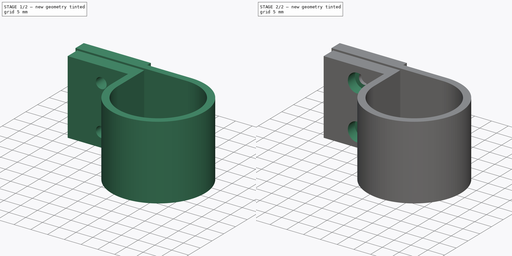
[diagram: build sequence overview — one tinted view per stage of 2, left to right]
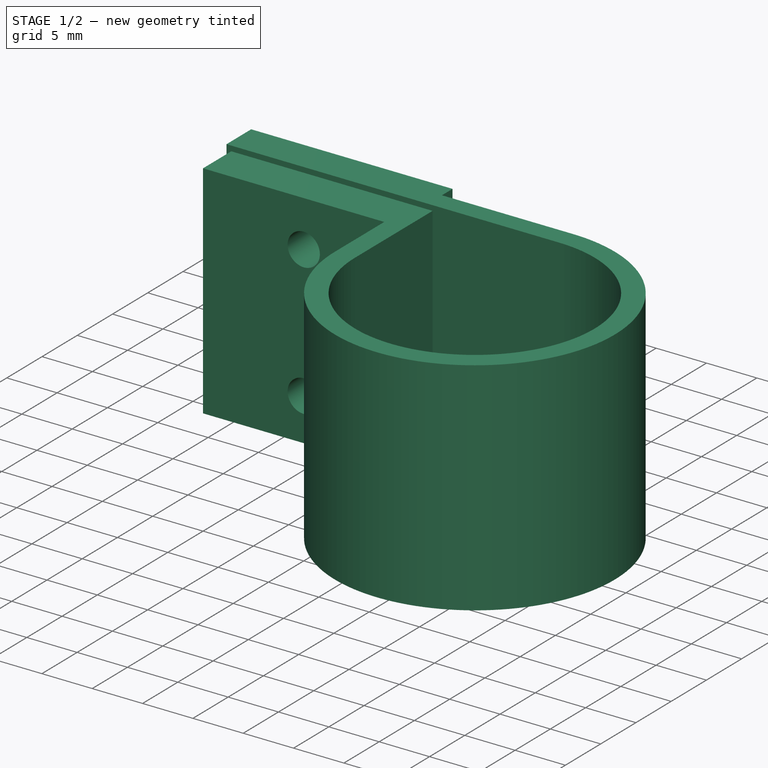
[diagram: stage 1 of 2 — iso view after this stage's code; geometry added in this stage tinted green]
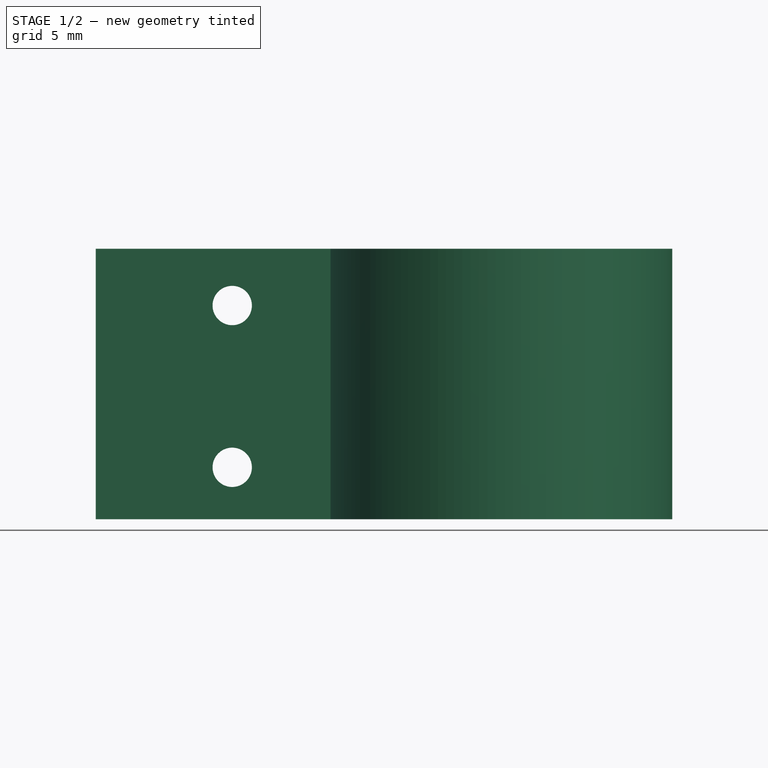
[diagram: stage 1 of 2 — front view after this stage's code; geometry added in this stage tinted green]
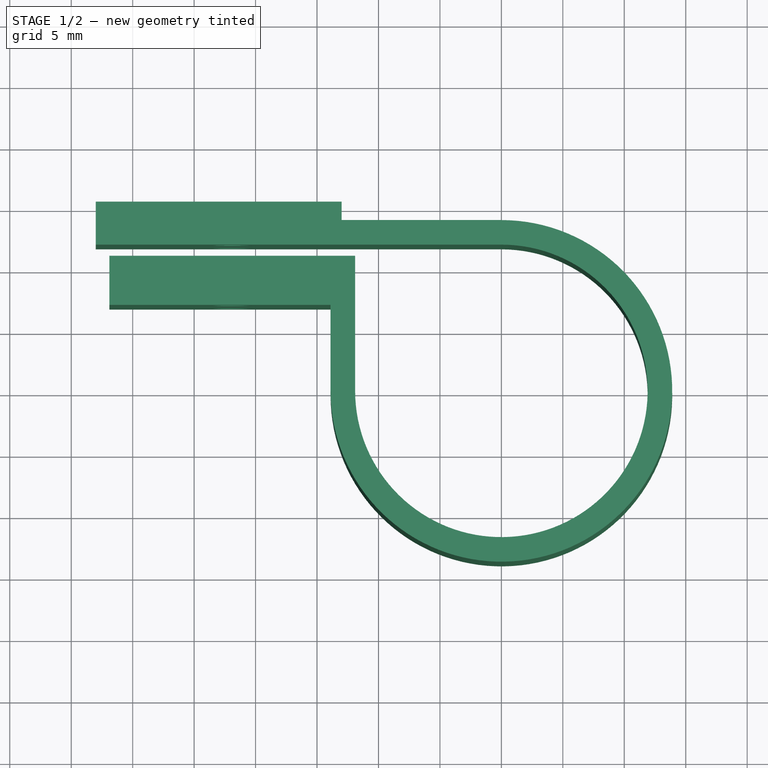
[diagram: stage 1 of 2 — top view after this stage's code; geometry added in this stage tinted green]
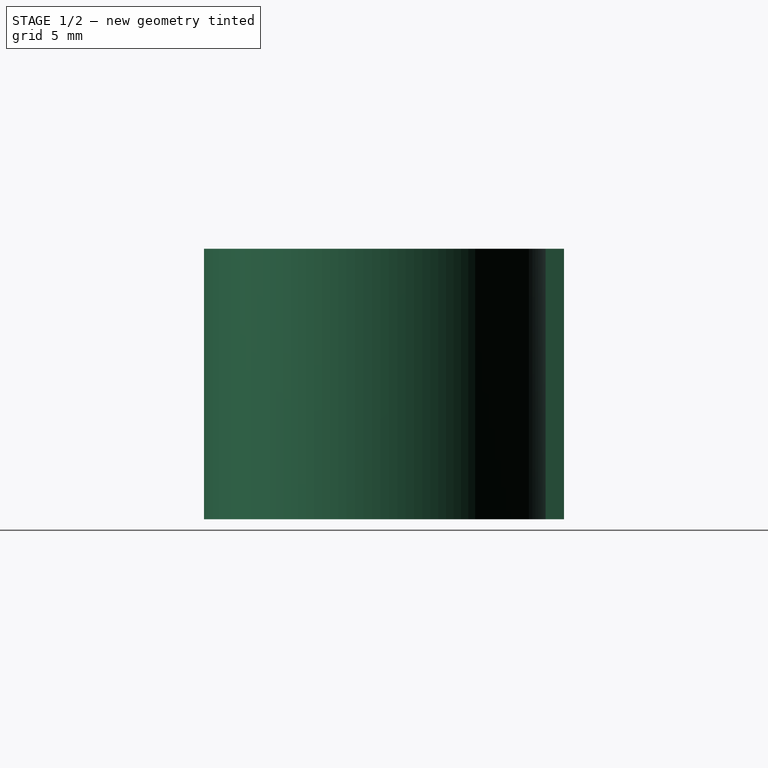
[diagram: stage 1 of 2 — right view after this stage's code; geometry added in this stage tinted green]
FCSTD DOCUMENT  (FreeCAD 0.18.4R)
Label: support_pump
License: All rights reserved
LicenseURL: http://en.wikipedia.org/wiki/All_rights_reserved
objects: Sketcher::SketchObject×3, PartDesign::Pocket×2, PartDesign::Pad×1, PartDesign::Body×1
note: 10 computed .brp shape members not serialized (recipe doc carries the construction recipe); baked Part::Feature solids carry a one-line shape summary decoded from their .brp

FEATURE [Sketcher::SketchObject] Sketch
  MapMode = 5
  Support = -> [XY_Plane]
  sketch-geometry (13):
    g0: ArcOfCircle CenterX=0 CenterY=0 CenterZ=0 NormalX=0 NormalY=0 NormalZ=1 AngleXU=0 Radius=13.9 StartAngle=3.14159 EndAngle=7.85398
    g1: ArcOfCircle CenterX=0 CenterY=0 CenterZ=0 NormalX=0 NormalY=0 NormalZ=1 AngleXU=0 Radius=11.9 StartAngle=3.14159 EndAngle=7.85398
    g2: LineSegment StartX=3.6e-15 StartY=11.9 StartZ=0 EndX=-33 EndY=11.9 EndZ=0
    g3: LineSegment StartX=-33 StartY=11.9 StartZ=0 EndX=-33 EndY=15.4 EndZ=0
    g4: LineSegment StartX=-13.9 StartY=1.7e-15 StartZ=0 EndX=-13.9 EndY=7 EndZ=0
    g5: LineSegment StartX=-11.9 StartY=1.5e-15 StartZ=0 EndX=-11.9 EndY=11 EndZ=0
    g6: LineSegment StartX=-11.9 StartY=11 StartZ=0 EndX=-31.9 EndY=11 EndZ=0
    g7: LineSegment StartX=-31.9 StartY=11 StartZ=0 EndX=-31.9 EndY=7 EndZ=0
    g8: LineSegment StartX=-31.9 StartY=7 StartZ=0 EndX=-13.9 EndY=7 EndZ=0
    g9: LineSegment StartX=4.3e-15 StartY=16.5 StartZ=0 EndX=4.3e-15 EndY=13.9 EndZ=0
    g10: LineSegment StartX=4.3e-15 StartY=13.9 StartZ=0 EndX=-13 EndY=13.9 EndZ=0
    g11: LineSegment StartX=-13 StartY=13.9 StartZ=0 EndX=-13 EndY=15.4 EndZ=0
    g12: LineSegment StartX=-13 StartY=15.4 StartZ=0 EndX=-33 EndY=15.4 EndZ=0
  constraints (38):
    c: Coincident(g0,g-1)
    c: PointOnObject(g0,g-1)
    c: Radius(g0) = 13.9
    c: Coincident(g1,g0)
    c: PointOnObject(g1,g-2)
    c: PointOnObject(g1,g-1)
    c: Radius(g1) = 11.9
    c: Coincident(g2,g1)
    c: Horizontal(g2)
    c: Coincident(g3,g2)
    c: Coincident(g4,g0)
    c: Vertical(g4)
    c: Coincident(g5,g1)
    c: Vertical(g5)
    c: Coincident(g6,g5)
    c: Horizontal(g6)
    c: Coincident(g7,g6)
    c: Vertical(g7)
    c: Coincident(g8,g7)
    c: Coincident(g8,g4)
    c: Horizontal(g8)
    c: DistanceY(g5,g5) = 11
    c: PointOnObject(g9,g-2)
    c: Coincident(g9,g0)
    c: Vertical(g9)
    c: DistanceY(g3,g3) = 3.5
    c: DistanceX(g6,g6) = 20
    c: Coincident(g10,g0)
    c: Horizontal(g10)
    c: Coincident(g11,g10)
    c: Coincident(g12,g11)
    c: Coincident(g12,g3)
    c: Horizontal(g12)
    c: DistanceX(g12,g12) = 20
    c: DistanceX(g2,g2) = 33
    c: Perpendicular(g2,g3)
    c: DistanceY(g7,g7) = 4
    c: Perpendicular(g10,g11)
FEATURE [PartDesign::Pad] Pad
  Length = 22
  Length2 = 100
  Profile = -> Sketch
  Type = 0
FEATURE [Sketcher::SketchObject] Sketch001
  ExternalGeometry = -> [Pad]
  MapMode = 5
  Placement = pos=(0,7,0) rot=(1,0,0;1.5708rad)
  Support = -> [Pad]
  sketch-geometry (2):
    g0: Circle CenterX=-21.9 CenterY=17.3851 CenterZ=0 NormalX=0 NormalY=0 NormalZ=1 AngleXU=0 Radius=1.6
    g1: Circle CenterX=-21.9 CenterY=4.22157 CenterZ=0 NormalX=0 NormalY=0 NormalZ=1 AngleXU=0 Radius=1.6
  constraints (4):
    c: Vertical(g0,g1)
    c: Radius(g0) = 1.6
    c: Radius(g1) = 1.6
    c: Distance(g0,g-3) = 10
FEATURE [PartDesign::Pocket] Pocket
  BaseFeature = -> Pad
  Length = 9.5
  Length2 = 100
  Profile = -> Sketch001
  Type = 0
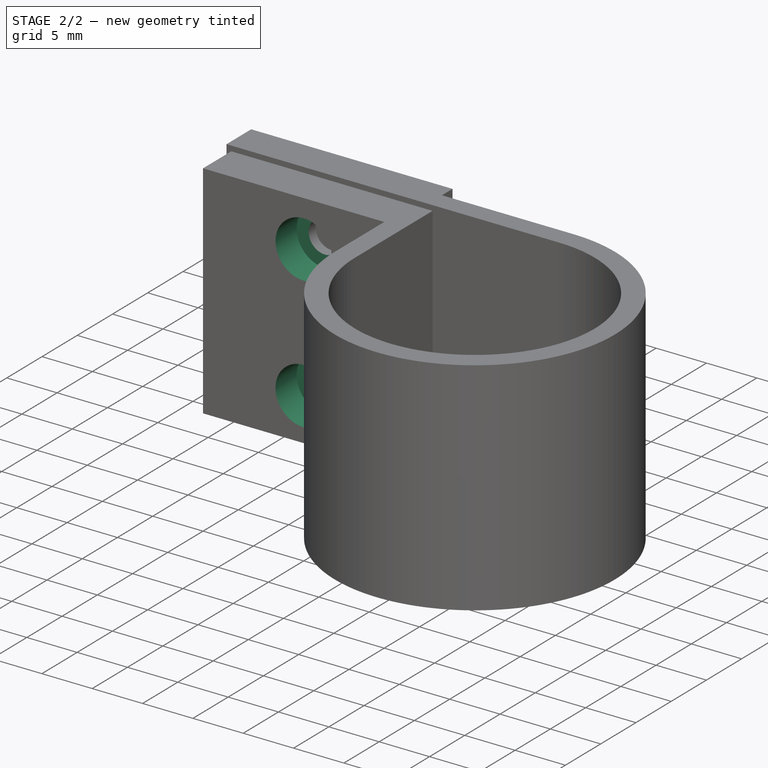
[diagram: stage 2 of 2 — iso view after this stage's code; geometry added in this stage tinted green]
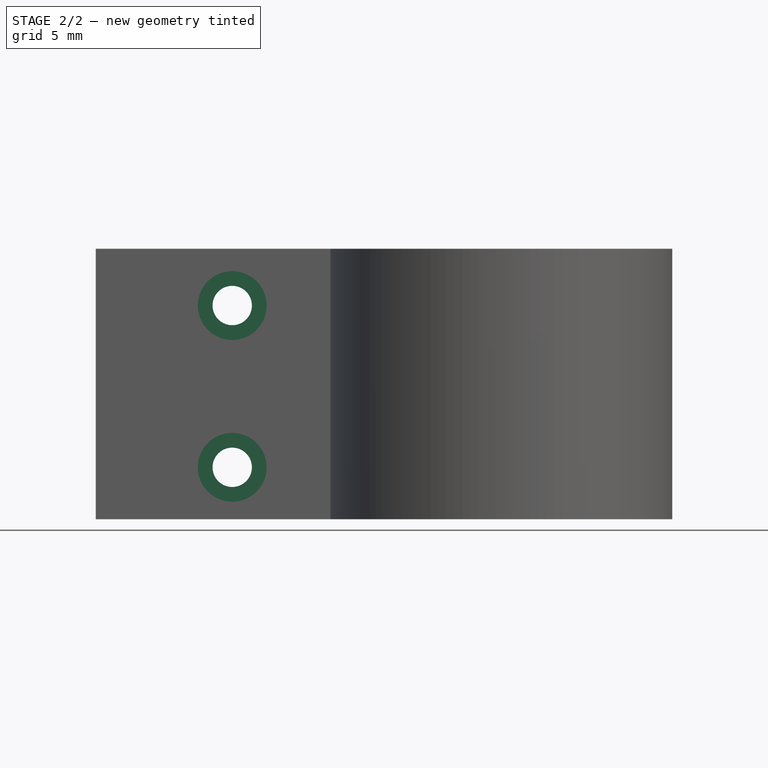
[diagram: stage 2 of 2 — front view after this stage's code; geometry added in this stage tinted green]
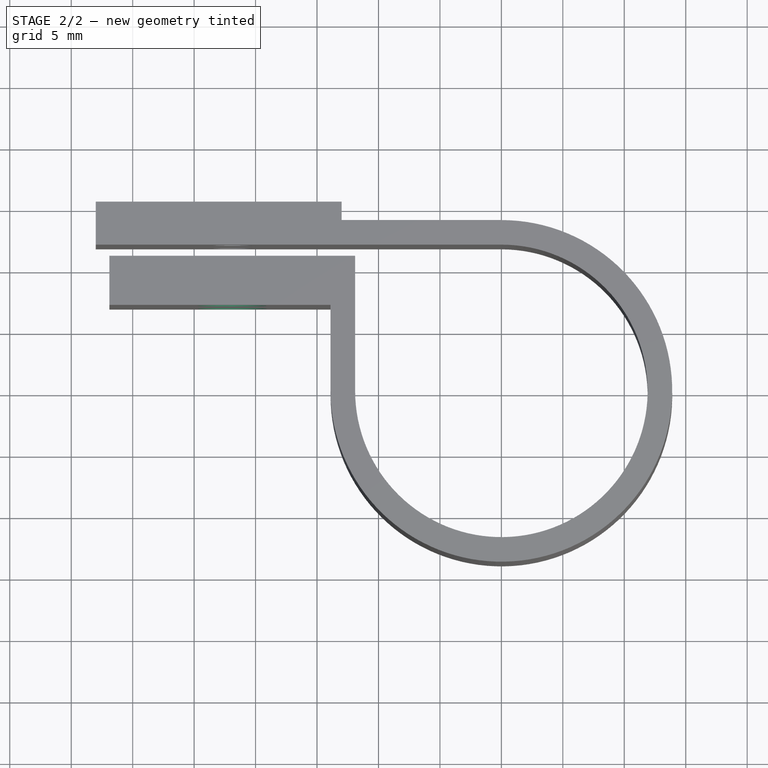
[diagram: stage 2 of 2 — top view after this stage's code; geometry added in this stage tinted green]
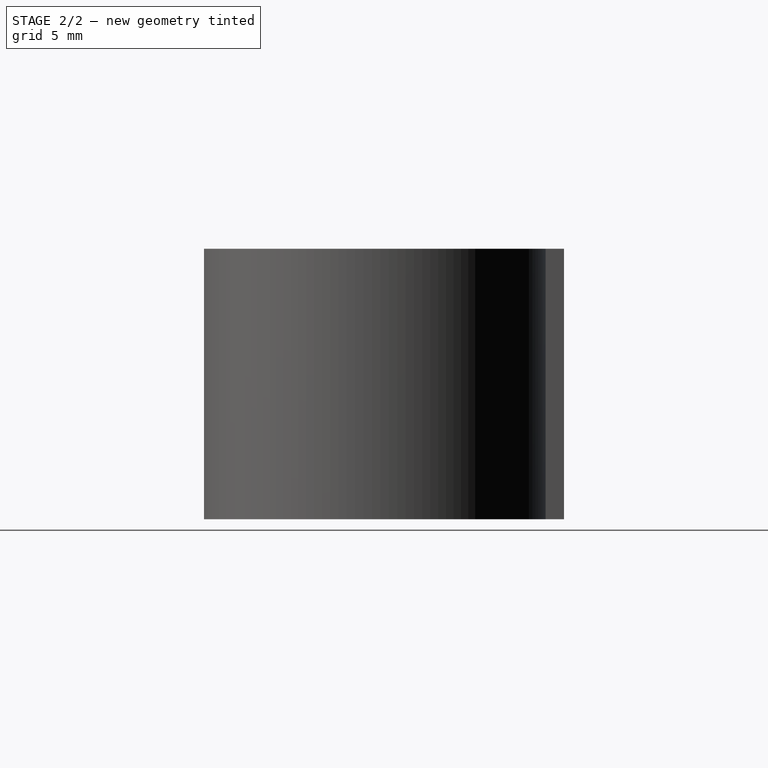
[diagram: stage 2 of 2 — right view after this stage's code; geometry added in this stage tinted green]
FEATURE [Sketcher::SketchObject] Sketch002
  ExternalGeometry = -> [Pocket]
  MapMode = 5
  Placement = pos=(0,7,0) rot=(1,0,0;1.5708rad)
  Support = -> [Pocket]
  sketch-geometry (2):
    g0: Circle CenterX=-21.9 CenterY=4.22157 CenterZ=0 NormalX=0 NormalY=0 NormalZ=1 AngleXU=0 Radius=2.8
    g1: Circle CenterX=-21.9 CenterY=17.3851 CenterZ=0 NormalX=0 NormalY=0 NormalZ=1 AngleXU=0 Radius=2.8
  constraints (4):
    c: Coincident(g0,g-3)
    c: Coincident(g1,g-4)
    c: Radius(g0) = 2.8
    c: Radius(g1) = 2.8
FEATURE [PartDesign::Pocket] Pocket001
  BaseFeature = -> Pocket
  Length = 3
  Length2 = 100
  Profile = -> Sketch002
  Type = 0
FEATURE [PartDesign::Body] Body
  Group = -> [Sketch,Pad,Sketch001,Pocket,Sketch002,Pocket001]
  Origin = -> Origin
  Tip = -> Pocket001
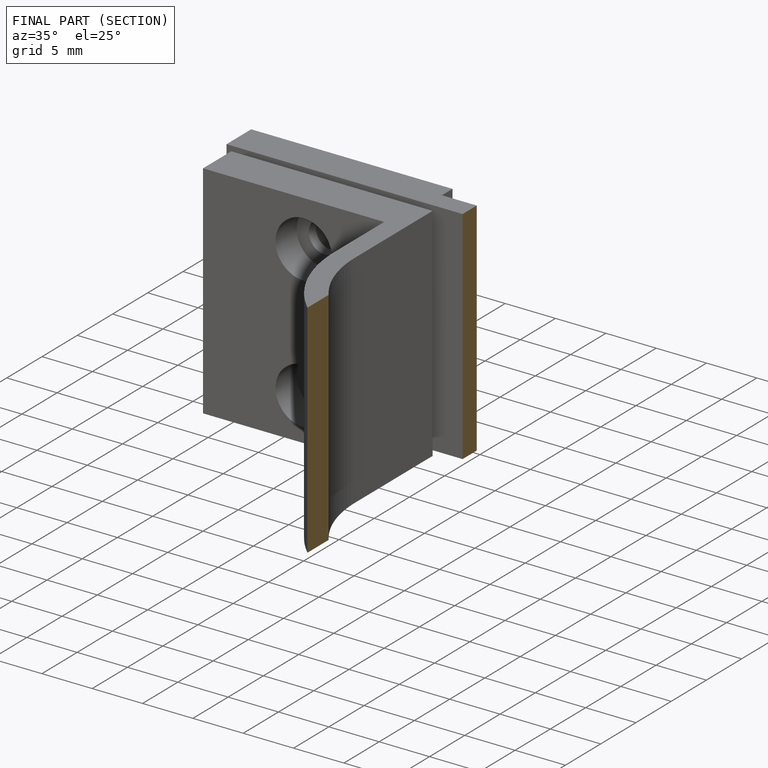
[diagram: finished part — half-section view (interior)]
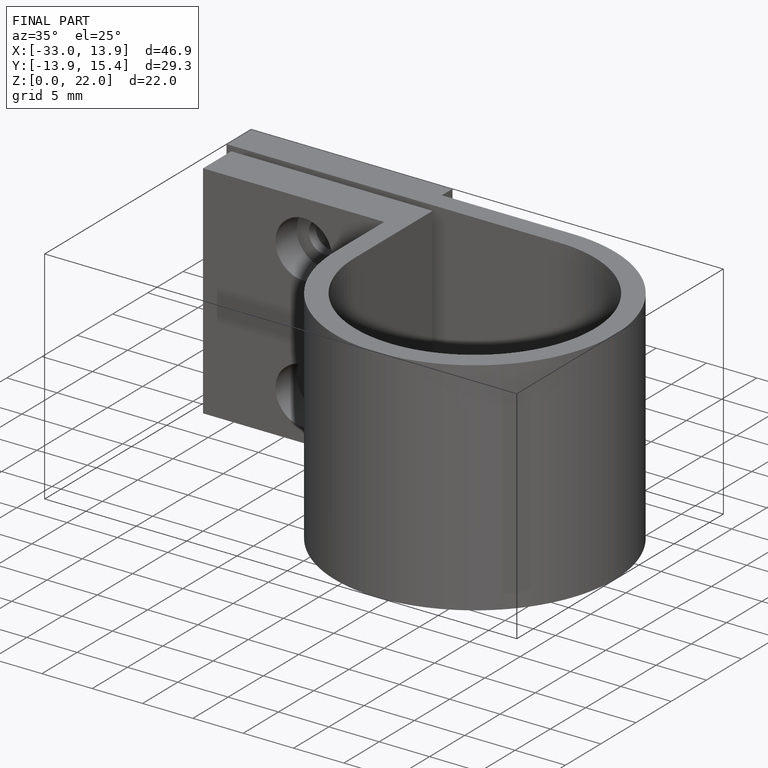
[diagram: finished part — iso view with bounding-box wireframe]
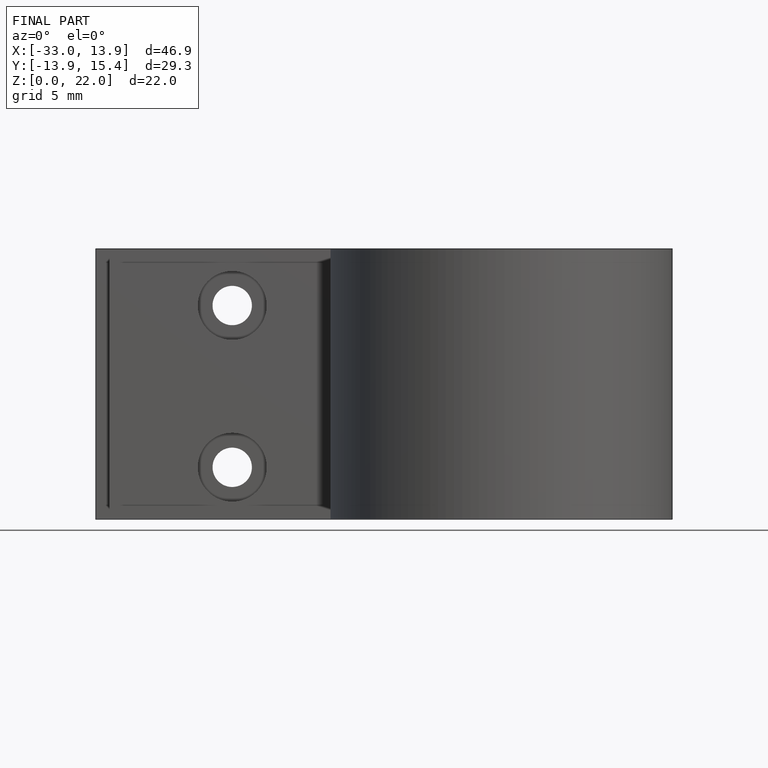
[diagram: finished part — front view with bounding-box wireframe]
